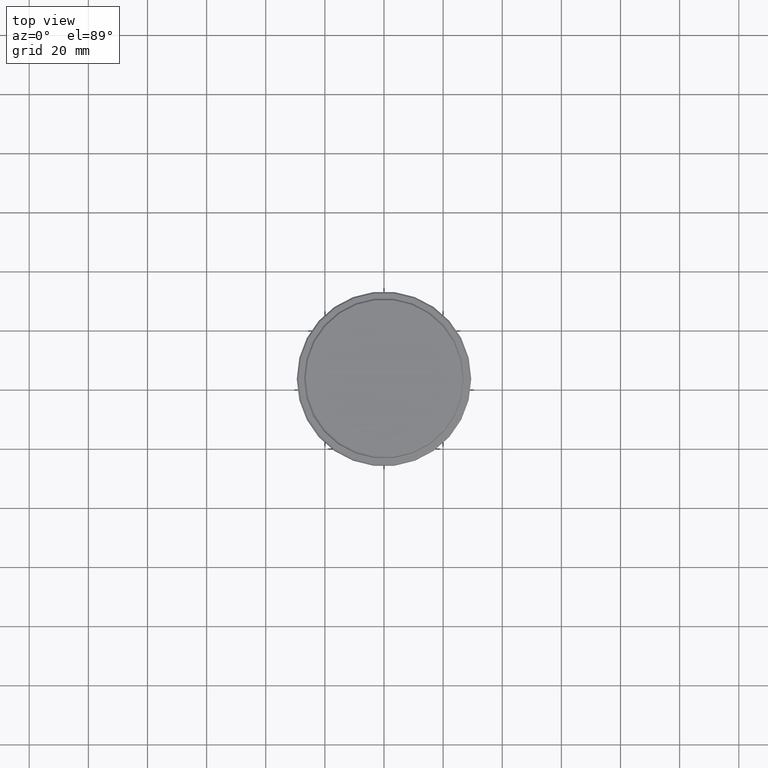
[diagram: clean part render]
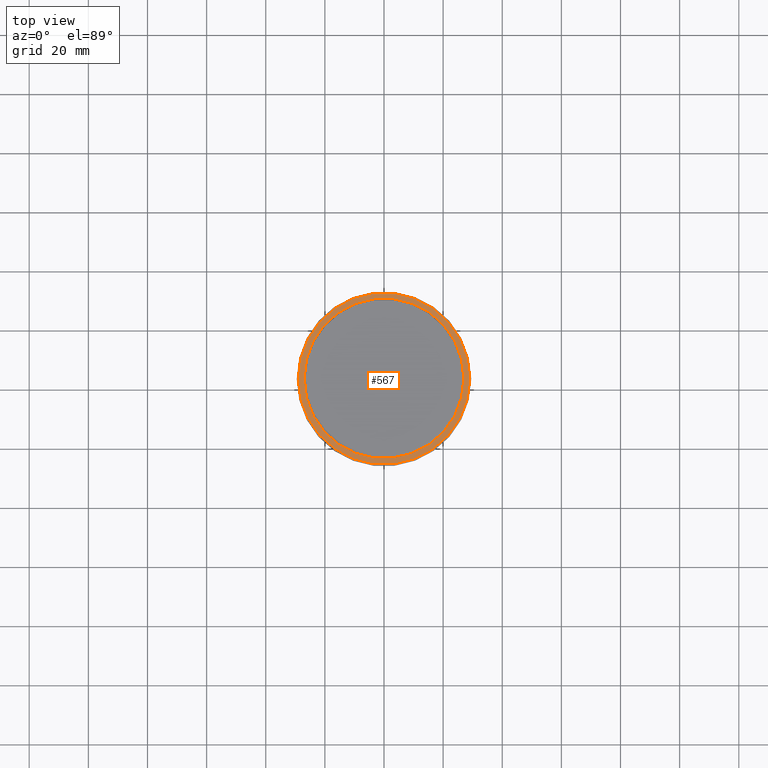
[diagram: same view with one face highlighted and labeled with its STEP entity id]
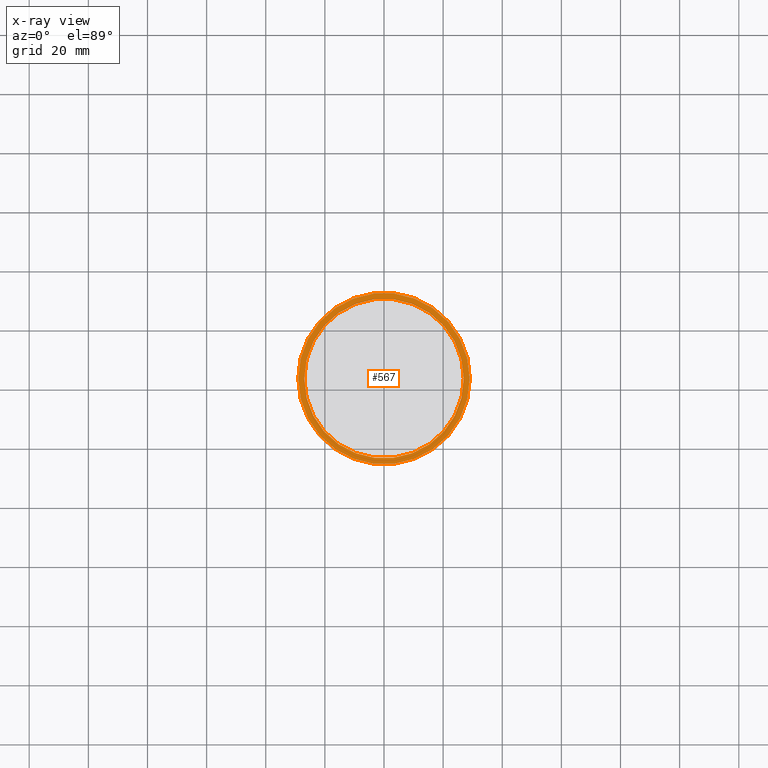
[diagram: x-ray of the same camera — body ghosted, the highlighted face saturated]
A machine part, top view. The second image highlights one B-rep face of the part: STEP entity #567.
The next image is the same camera in x-ray: the body ghosted, the highlighted face saturated — about 0% of this face is hidden behind the body in this view.
In plain terms, the highlighted planar face has unit normal (0, -0, 1).
Its self-contained STEP definition (entity closure, byte-faithful):
#18 = DIRECTION ( 'NONE',  ( 1.000000000000000000, 0.000000000000000000, 0.000000000000000000 ) ) ;
#38 = ORIENTED_EDGE ( 'NONE', *, *, #774, .T. ) ;
#40 = VERTEX_POINT ( 'NONE', #136 ) ;
#67 = EDGE_CURVE ( 'NONE', #906, #40, #1350, .T. ) ;
#135 = DIRECTION ( 'NONE',  ( 0.000000000000000000, -0.000000000000000000, 1.000000000000000000 ) ) ;
#136 = CARTESIAN_POINT ( 'NONE',  ( 26.99999999999999645, 0.000000000000000000, -12.00000000000000355 ) ) ;
#144 = CIRCLE ( 'NONE', #1354, 26.99999999999999645 ) ;
#149 = CARTESIAN_POINT ( 'NONE',  ( -29.00000000000008171, 0.000000000000000000, -12.00000000000000355 ) ) ;
#171 = CARTESIAN_POINT ( 'NONE',  ( 0.000000000000000000, 0.000000000000000000, -12.00000000000000355 ) ) ;
#239 = PLANE ( 'NONE',  #458 ) ;
#264 = VERTEX_POINT ( 'NONE', #604 ) ;
#458 = AXIS2_PLACEMENT_3D ( 'NONE', #1314, #135, #1197 ) ;
#499 = EDGE_LOOP ( 'NONE', ( #38, #591 ) ) ;
#522 = ORIENTED_EDGE ( 'NONE', *, *, #829, .T. ) ;
#567 = ADVANCED_FACE ( 'NONE', ( #767, #888 ), #239, .T. ) ;
#591 = ORIENTED_EDGE ( 'NONE', *, *, #67, .T. ) ;
#604 = CARTESIAN_POINT ( 'NONE',  ( 29.00000000000008171, 3.582091887506012550E-15, -12.00000000000000355 ) ) ;
#633 = CARTESIAN_POINT ( 'NONE',  ( 0.000000000000000000, 0.000000000000000000, -12.00000000000000355 ) ) ;
#644 = DIRECTION ( 'NONE',  ( 1.000000000000000000, 0.000000000000000000, 0.000000000000000000 ) ) ;
#718 = AXIS2_PLACEMENT_3D ( 'NONE', #1351, #889, #18 ) ;
#767 = FACE_OUTER_BOUND ( 'NONE', #1401, .T. ) ;
#774 = EDGE_CURVE ( 'NONE', #40, #906, #144, .T. ) ;
#822 = AXIS2_PLACEMENT_3D ( 'NONE', #171, #922, #950 ) ;
#829 = EDGE_CURVE ( 'NONE', #1034, #264, #1076, .T. ) ;
#854 = CARTESIAN_POINT ( 'NONE',  ( 0.000000000000000000, 0.000000000000000000, -12.00000000000000355 ) ) ;
#888 = FACE_BOUND ( 'NONE', #499, .T. ) ;
#889 = DIRECTION ( 'NONE',  ( 0.000000000000000000, 0.000000000000000000, -1.000000000000000000 ) ) ;
#906 = VERTEX_POINT ( 'NONE', #1003 ) ;
#922 = DIRECTION ( 'NONE',  ( -0.000000000000000000, -0.000000000000000000, 1.000000000000000000 ) ) ;
#937 = AXIS2_PLACEMENT_3D ( 'NONE', #633, #1168, #1064 ) ;
#950 = DIRECTION ( 'NONE',  ( 1.000000000000000000, 0.000000000000000000, 0.000000000000000000 ) ) ;
#987 = CIRCLE ( 'NONE', #822, 29.00000000000008171 ) ;
#1003 = CARTESIAN_POINT ( 'NONE',  ( -26.99999999999999645, 3.306546357697853339E-15, -12.00000000000000355 ) ) ;
#1034 = VERTEX_POINT ( 'NONE', #149 ) ;
#1052 = ORIENTED_EDGE ( 'NONE', *, *, #1175, .T. ) ;
#1064 = DIRECTION ( 'NONE',  ( 1.000000000000000000, 0.000000000000000000, 0.000000000000000000 ) ) ;
#1076 = CIRCLE ( 'NONE', #937, 29.00000000000008171 ) ;
#1168 = DIRECTION ( 'NONE',  ( -0.000000000000000000, -0.000000000000000000, 1.000000000000000000 ) ) ;
#1175 = EDGE_CURVE ( 'NONE', #264, #1034, #987, .T. ) ;
#1197 = DIRECTION ( 'NONE',  ( 1.000000000000000000, 0.000000000000000000, 0.000000000000000000 ) ) ;
#1305 = DIRECTION ( 'NONE',  ( 0.000000000000000000, 0.000000000000000000, -1.000000000000000000 ) ) ;
#1314 = CARTESIAN_POINT ( 'NONE',  ( 0.000000000000000000, 26.49999999999999645, -12.00000000000000355 ) ) ;
#1350 = CIRCLE ( 'NONE', #718, 26.99999999999999645 ) ;
#1351 = CARTESIAN_POINT ( 'NONE',  ( 0.000000000000000000, 0.000000000000000000, -12.00000000000000355 ) ) ;
#1354 = AXIS2_PLACEMENT_3D ( 'NONE', #854, #1305, #644 ) ;
#1401 = EDGE_LOOP ( 'NONE', ( #522, #1052 ) ) ;